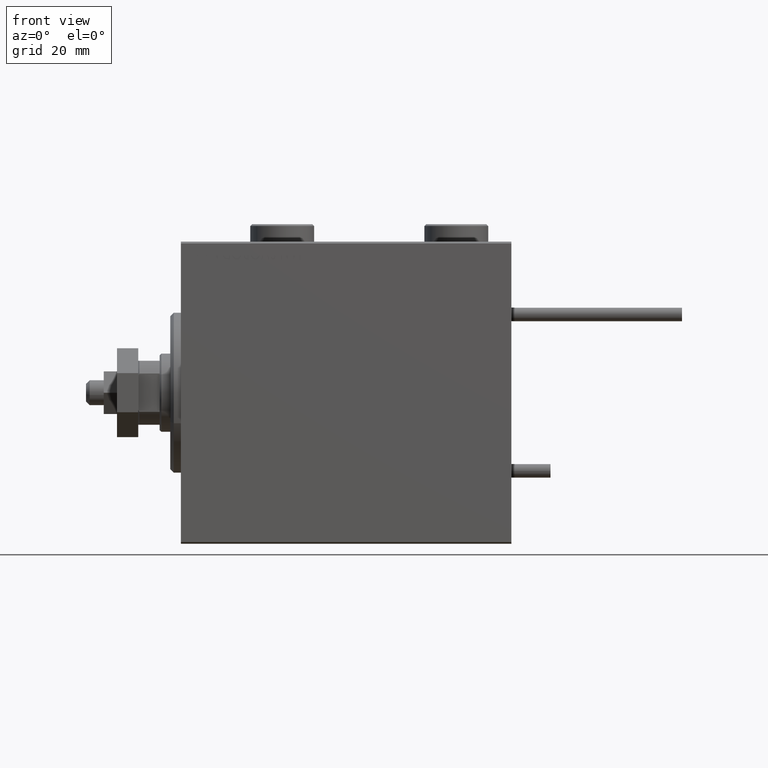
[diagram: clean part render]
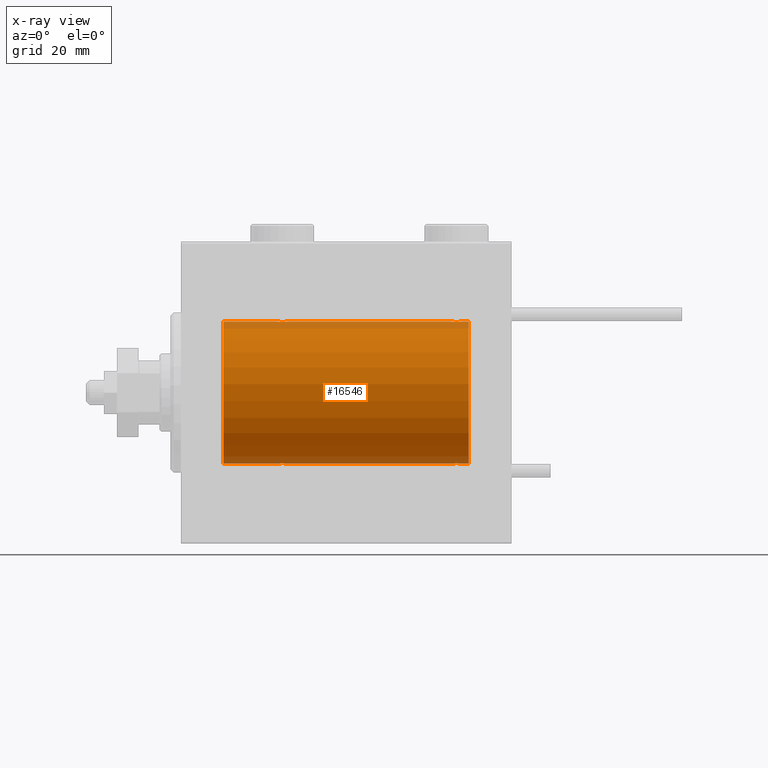
[diagram: x-ray — body ghosted, one internal face saturated and labeled with its STEP entity id]
A machine part, front view, then the same camera in x-ray: the body is ghosted and one INTERNAL B-rep face — a face not visible from any outside direction — is saturated and labeled: STEP entity #16546.
In plain terms, the highlighted cylindrical surface (partial cylindrical patch) has radius 20 mm, axis along (-1, -0, -0).
Its self-contained STEP definition (entity closure, byte-faithful):
#24 = CARTESIAN_POINT ( 'NONE',  ( 75.55244937117493009, -0.5243189001515065062, 19.99457699142850231 ) ) ;
#93 = VECTOR ( 'NONE', #21759, 1000.000000000000000 ) ;
#114 = CARTESIAN_POINT ( 'NONE',  ( 78.82306668919471804, -1.505486175075773758, -19.94347168299867690 ) ) ;
#1064 = CARTESIAN_POINT ( 'NONE',  ( 30.50000000000000000, 2.449293582768389958E-15, -20.00000000000000000 ) ) ;
#1127 = DIRECTION ( 'NONE',  ( -1.000000000000000000, -0.000000000000000000, -0.000000000000000000 ) ) ;
#1616 = CARTESIAN_POINT ( 'NONE',  ( 30.24686976303072328, -1.008108445278688148, 19.97602680192586533 ) ) ;
#2329 = ORIENTED_EDGE ( 'NONE', *, *, #19456, .T. ) ;
#3068 = ORIENTED_EDGE ( 'NONE', *, *, #12763, .T. ) ;
#3178 = CARTESIAN_POINT ( 'NONE',  ( 77.76077256031568652, -1.987205673487813851, 19.90104673894211018 ) ) ;
#3291 = EDGE_CURVE ( 'NONE', #32150, #45580, #17606, .T. ) ;
#3297 = DIRECTION ( 'NONE',  ( -1.000000000000000000, -0.000000000000000000, -0.000000000000000000 ) ) ;
#3449 = CARTESIAN_POINT ( 'NONE',  ( 26.50000000000001421, -0.2610801504281932695, 20.00000000000000000 ) ) ;
#3710 = CARTESIAN_POINT ( 'NONE',  ( 29.38579076670728440, -1.797933656607920261, 19.91908554465558367 ) ) ;
#4017 = CARTESIAN_POINT ( 'NONE',  ( 75.50000000000000000, -0.2644051013331069067, -19.99999999999999289 ) ) ;
#4205 = CARTESIAN_POINT ( 'NONE',  ( 30.24825913460018256, -1.005710574260840096, -19.97614991974273835 ) ) ;
#4216 = CARTESIAN_POINT ( 'NONE',  ( 26.90058475115969827, -1.228758402364238833, 19.96307487248084911 ) ) ;
#4350 = B_SPLINE_CURVE_WITH_KNOTS ( 'NONE', 3,
 ( #15667, #15414, #24, #31804, #50619, #14915, #30793, #47466, #46706, #10991, #19317, #42790, #7078, #22981, #3178, #27386, #51117, #31294, #43300, #7587, #44339, #8881, #9143, #24256, #8623, #24517 ),
 .UNSPECIFIED., .F., .F.,
 ( 4, 2, 2, 2, 2, 2, 2, 2, 2, 2, 2, 2, 4 ),
 ( 0.006256819553329831876, 0.007038738568778781998, 0.007820657584227732120, 0.008211617091952221059, 0.008602576599676711733, 0.008993536107401200672, 0.009384495615125689610, 0.009775455122850180284, 0.01016641463057467096, 0.01055737413829915816, 0.01094833364602364884, 0.01173025266147262671, 0.01251217167692160459 ),
 .UNSPECIFIED. ) ;
#4637 = ORIENTED_EDGE ( 'NONE', *, *, #15284, .F. ) ;
#5515 = CARTESIAN_POINT ( 'NONE',  ( 29.71805419472152110, -1.591668229360197806, 19.93669678979812687 ) ) ;
#6009 = ORIENTED_EDGE ( 'NONE', *, *, #31274, .T. ) ;
#6389 = ORIENTED_EDGE ( 'NONE', *, *, #18362, .F. ) ;
#7078 = CARTESIAN_POINT ( 'NONE',  ( 77.36634803857550935, -1.999898234284064324, 19.89975896996866211 ) ) ;
#7416 = CARTESIAN_POINT ( 'NONE',  ( 76.98351467081099031, -1.936551476643008529, -19.90603968831099024 ) ) ;
#7587 = CARTESIAN_POINT ( 'NONE',  ( 78.71805419472154597, -1.591668229360194697, 19.93669678979812332 ) ) ;
#7611 = CARTESIAN_POINT ( 'NONE',  ( 29.01648532918905232, -1.936551476643010528, 19.90603968831098314 ) ) ;
#7926 = CARTESIAN_POINT ( 'NONE',  ( 76.17903093152709459, -1.507328959728491791, -19.94333197382385592 ) ) ;
#8112 = CARTESIAN_POINT ( 'NONE',  ( 26.55320515808203297, -0.5270924491156746550, -19.99450181871975829 ) ) ;
#8374 = CARTESIAN_POINT ( 'NONE',  ( 29.01923512135277150, -1.935816449315127308, -19.90611141657401362 ) ) ;
#8584 = CARTESIAN_POINT ( 'NONE',  ( 81.00000000000000000, 0.000000000000000000, 0.000000000000000000 ) ) ;
#8623 = CARTESIAN_POINT ( 'NONE',  ( 79.50000000000001421, -0.2644051013330996902, 20.00000000000000000 ) ) ;
#8881 = CARTESIAN_POINT ( 'NONE',  ( 79.09774691554730452, -1.230936344679277372, 19.96293863536309132 ) ) ;
#8896 = B_SPLINE_CURVE_WITH_KNOTS ( 'NONE', 3,
 ( #23766, #3449, #27665, #39677, #4216, #27410, #47233, #40202, #20393, #12561, #20128, #23256, #36018, #36280, #16489, #7611, #39415, #3710, #9672, #5515, #48795, #8909, #1616, #33638, #25055, #21165 ),
 .UNSPECIFIED., .F., .F.,
 ( 4, 2, 2, 2, 2, 2, 2, 2, 2, 2, 2, 2, 4 ),
 ( 0.006256819553329818866, 0.007038738568778795009, 0.007820657584227770284, 0.008211617091952255754, 0.008602576599676739488, 0.008993536107401223223, 0.009384495615125706958, 0.009775455122850190692, 0.01016641463057467443, 0.01055737413829915816, 0.01094833364602364190, 0.01173025266147261110, 0.01251217167692157857 ),
 .UNSPECIFIED. ) ;
#8909 = CARTESIAN_POINT ( 'NONE',  ( 30.09774691554730808, -1.230936344679279593, 19.96293863536309487 ) ) ;
#9143 = CARTESIAN_POINT ( 'NONE',  ( 79.24686976303073038, -1.008108445278686371, 19.97602680192586178 ) ) ;
#9557 = VERTEX_POINT ( 'NONE', #11425 ) ;
#9672 = CARTESIAN_POINT ( 'NONE',  ( 29.50067219139245367, -1.736582545981377734, 19.92459705242981371 ) ) ;
#10073 = CARTESIAN_POINT ( 'NONE',  ( 26.50000000000000355, -6.257798774011376898E-15, -20.00000000000000000 ) ) ;
#10360 = CARTESIAN_POINT ( 'NONE',  ( 79.50000000000001421, 2.449293582762867932E-15, -20.00000000000000000 ) ) ;
#10621 = VERTEX_POINT ( 'NONE', #10360 ) ;
#10991 = CARTESIAN_POINT ( 'NONE',  ( 76.85369326075360163, -1.897222639860601356, 19.90987429971496425 ) ) ;
#11007 = CARTESIAN_POINT ( 'NONE',  ( 30.50000000000000000, -0.2610801504281901053, -20.00000000000000000 ) ) ;
#11256 = CARTESIAN_POINT ( 'NONE',  ( 29.50306556339602082, -1.735203193119896348, -19.92471783160911158 ) ) ;
#11325 = CARTESIAN_POINT ( 'NONE',  ( 75.50000000000001421, -5.133775462521235346E-15, -20.00000000000000000 ) ) ;
#11425 = CARTESIAN_POINT ( 'NONE',  ( 81.00000000000000000, 2.449293598294706513E-15, -20.00000000000000000 ) ) ;
#11585 = CARTESIAN_POINT ( 'NONE',  ( 77.76358144091416591, -1.986835489085815309, -19.90108393514801577 ) ) ;
#11835 = CARTESIAN_POINT ( 'NONE',  ( 77.23922743968434190, -1.987205673487811630, -19.90104673894211018 ) ) ;
#12064 = DIRECTION ( 'NONE',  ( 0.000000000000000000, 0.000000000000000000, 1.000000000000000000 ) ) ;
#12224 = EDGE_CURVE ( 'NONE', #9557, #15544, #32705, .T. ) ;
#12561 = CARTESIAN_POINT ( 'NONE',  ( 27.85369326075355190, -1.897222639860601578, 19.90987429971495715 ) ) ;
#12763 = EDGE_CURVE ( 'NONE', #45580, #43662, #13552, .T. ) ;
#13169 = EDGE_CURVE ( 'NONE', #26379, #43662, #50491, .T. ) ;
#13552 = CIRCLE ( 'NONE', #30204, 20.00000000000000000 ) ;
#13655 = LINE ( 'NONE', #29538, #33950 ) ;
#14504 = CARTESIAN_POINT ( 'NONE',  ( 30.50000000000000000, -9.453669475664189070E-16, 20.00000000000000000 ) ) ;
#14518 = CARTESIAN_POINT ( 'NONE',  ( 81.00000000000000000, 0.000000000000000000, 0.000000000000000000 ) ) ;
#14578 = VERTEX_POINT ( 'NONE', #37602 ) ;
#14783 = CARTESIAN_POINT ( 'NONE',  ( 81.00000000000000000, 0.000000000000000000, 20.00000000000000000 ) ) ;
#14915 = CARTESIAN_POINT ( 'NONE',  ( 76.17693331080531038, -1.505486175075774868, 19.94347168299867690 ) ) ;
#15284 = EDGE_CURVE ( 'NONE', #15544, #44170, #26263, .T. ) ;
#15414 = CARTESIAN_POINT ( 'NONE',  ( 75.50000000000001421, -0.2610801504281921037, 20.00000000000000000 ) ) ;
#15492 = CARTESIAN_POINT ( 'NONE',  ( 75.55320515808202231, -0.5270924491156711023, -19.99450181871975474 ) ) ;
#15544 = VERTEX_POINT ( 'NONE', #49172 ) ;
#15667 = CARTESIAN_POINT ( 'NONE',  ( 75.50000000000001421, -1.553188236289650144E-23, 20.00000000000000000 ) ) ;
#15683 = CARTESIAN_POINT ( 'NONE',  ( 26.50000000000000355, -6.257798774011376898E-15, -20.00000000000000000 ) ) ;
#15696 = EDGE_LOOP ( 'NONE', ( #50905, #6009, #35137, #45788, #2329, #17954, #3068, #32813, #36574, #6389, #42614, #4637 ) ) ;
#15943 = CARTESIAN_POINT ( 'NONE',  ( 29.82306668919470027, -1.505486175075773314, -19.94347168299866979 ) ) ;
#15979 = DIRECTION ( 'NONE',  ( -1.000000000000000000, 0.000000000000000000, 0.000000000000000000 ) ) ;
#16016 = CARTESIAN_POINT ( 'NONE',  ( 77.36941128289169001, -2.000100592782554809, -19.89973863218035888 ) ) ;
#16210 = CARTESIAN_POINT ( 'NONE',  ( 27.28194580527850022, -1.591668229360200026, -19.93669678979812687 ) ) ;
#16489 = CARTESIAN_POINT ( 'NONE',  ( 28.76077256031568652, -1.987205673487814739, 19.90104673894211018 ) ) ;
#16546 = ADVANCED_FACE ( 'NONE', ( #48472 ), #44293, .F. ) ;
#17284 = CARTESIAN_POINT ( 'NONE',  ( 81.00000000000000000, 2.449293598294706513E-15, -20.00000000000000000 ) ) ;
#17606 = LINE ( 'NONE', #33227, #93 ) ;
#17954 = ORIENTED_EDGE ( 'NONE', *, *, #3291, .T. ) ;
#18362 = EDGE_CURVE ( 'NONE', #14578, #29922, #50057, .T. ) ;
#18642 = VECTOR ( 'NONE', #48327, 1000.000000000000000 ) ;
#19317 = CARTESIAN_POINT ( 'NONE',  ( 76.98076487864724982, -1.935816449315128418, 19.90611141657401362 ) ) ;
#19456 = EDGE_CURVE ( 'NONE', #21609, #32150, #28174, .T. ) ;
#19593 = CARTESIAN_POINT ( 'NONE',  ( 30.09941524884030528, -1.228758402364235724, -19.96307487248084911 ) ) ;
#19855 = CARTESIAN_POINT ( 'NONE',  ( 28.36941128289166514, -2.000100592782555697, -19.89973863218036598 ) ) ;
#19928 = CARTESIAN_POINT ( 'NONE',  ( 78.38829437207094486, -1.796691196322316886, -19.91919800395357143 ) ) ;
#20058 = DIRECTION ( 'NONE',  ( 0.000000000000000000, 0.000000000000000000, 1.000000000000000000 ) ) ;
#20108 = EDGE_CURVE ( 'NONE', #26379, #29922, #8896, .T. ) ;
#20115 = CARTESIAN_POINT ( 'NONE',  ( 27.85651471266958978, -1.898187925611340976, -19.90978194174746818 ) ) ;
#20128 = CARTESIAN_POINT ( 'NONE',  ( 27.98076487864723561, -1.935816449315131749, 19.90611141657401362 ) ) ;
#20393 = CARTESIAN_POINT ( 'NONE',  ( 27.61170562792909777, -1.796691196322324213, 19.91919800395357498 ) ) ;
#20762 = CARTESIAN_POINT ( 'NONE',  ( 75.50000000000001421, -5.133775462521235346E-15, -20.00000000000000000 ) ) ;
#21130 = CARTESIAN_POINT ( 'NONE',  ( 26.50000000000000355, -1.552596590610734385E-23, 20.00000000000000000 ) ) ;
#21165 = CARTESIAN_POINT ( 'NONE',  ( 30.50000000000000000, -9.453669475664189070E-16, 20.00000000000000000 ) ) ;
#21609 = VERTEX_POINT ( 'NONE', #1064 ) ;
#21727 = DIRECTION ( 'NONE',  ( -1.000000000000000000, -0.000000000000000000, -0.000000000000000000 ) ) ;
#21759 = DIRECTION ( 'NONE',  ( -1.000000000000000000, -0.000000000000000000, -0.000000000000000000 ) ) ;
#22090 = DIRECTION ( 'NONE',  ( 0.000000000000000000, 0.000000000000000000, 1.000000000000000000 ) ) ;
#22981 = CARTESIAN_POINT ( 'NONE',  ( 77.63058871710833841, -2.000100592782557474, 19.89973863218036243 ) ) ;
#23063 = CARTESIAN_POINT ( 'NONE',  ( 75.75313023696931225, -1.008108445278686816, -19.97602680192586178 ) ) ;
#23256 = CARTESIAN_POINT ( 'NONE',  ( 28.23641855908585541, -1.986835489085820194, 19.90108393514801222 ) ) ;
#23313 = CARTESIAN_POINT ( 'NONE',  ( 79.09941524884031594, -1.228758402364235947, -19.96307487248084556 ) ) ;
#23756 = CARTESIAN_POINT ( 'NONE',  ( 27.49932780860757475, -1.736582545981378845, -19.92459705242981371 ) ) ;
#23766 = CARTESIAN_POINT ( 'NONE',  ( 26.50000000000000355, -1.552596590610734385E-23, 20.00000000000000000 ) ) ;
#23825 = CARTESIAN_POINT ( 'NONE',  ( 76.61420923329272625, -1.797933656607920039, -19.91908554465557657 ) ) ;
#24256 = CARTESIAN_POINT ( 'NONE',  ( 79.44679484191797769, -0.5270924491156685487, 19.99450181871975474 ) ) ;
#24272 = CARTESIAN_POINT ( 'NONE',  ( 28.63365196142447644, -1.999898234284065657, -19.89975896996865856 ) ) ;
#24512 = AXIS2_PLACEMENT_3D ( 'NONE', #8584, #39609, #20058 ) ;
#24517 = CARTESIAN_POINT ( 'NONE',  ( 79.50000000000001421, 1.186436973908835920E-15, 20.00000000000000000 ) ) ;
#25055 = CARTESIAN_POINT ( 'NONE',  ( 30.50000000000000000, -0.2644051013330992461, 19.99999999999999645 ) ) ;
#25543 = CARTESIAN_POINT ( 'NONE',  ( 81.00000000000000000, 0.000000000000000000, 20.00000000000000000 ) ) ;
#26263 = LINE ( 'NONE', #34602, #29454 ) ;
#26379 = VERTEX_POINT ( 'NONE', #21130 ) ;
#26957 = CARTESIAN_POINT ( 'NONE',  ( 78.01923512135279282, -1.935816449315126642, -19.90611141657402072 ) ) ;
#27142 = CARTESIAN_POINT ( 'NONE',  ( 26.90225308445270613, -1.230936344679281369, -19.96293863536309487 ) ) ;
#27208 = CARTESIAN_POINT ( 'NONE',  ( 78.72028945794467347, -1.589957321664207113, -19.93683391378736758 ) ) ;
#27386 = CARTESIAN_POINT ( 'NONE',  ( 78.01648532918905232, -1.936551476643010528, 19.90603968831098669 ) ) ;
#27410 = CARTESIAN_POINT ( 'NONE',  ( 27.17693331080529973, -1.505486175075776645, 19.94347168299866979 ) ) ;
#27665 = CARTESIAN_POINT ( 'NONE',  ( 26.55244937117491943, -0.5243189001515041747, 19.99457699142850231 ) ) ;
#27724 = CARTESIAN_POINT ( 'NONE',  ( 78.14630673924648363, -1.897222639860595139, -19.90987429971497136 ) ) ;
#27914 = CARTESIAN_POINT ( 'NONE',  ( 29.14630673924644100, -1.897222639860597360, -19.90987429971497136 ) ) ;
#27980 = CARTESIAN_POINT ( 'NONE',  ( 79.24825913460020388, -1.005710574260840984, -19.97614991974274901 ) ) ;
#28174 = B_SPLINE_CURVE_WITH_KNOTS ( 'NONE', 3,
 ( #30810, #11007, #34976, #4205, #19593, #15943, #39146, #11256, #43829, #27914, #8374, #35746, #24272, #19855, #51386, #47482, #20115, #31310, #23756, #16210, #47738, #27142, #51132, #8112, #40191, #15683 ),
 .UNSPECIFIED., .F., .F.,
 ( 4, 2, 2, 2, 2, 2, 2, 2, 2, 2, 2, 2, 4 ),
 ( 0.006256819553329837948, 0.007038738568778813223, 0.007820657584227789366, 0.008211617091952273101, 0.008602576599676756836, 0.008993536107401240570, 0.009384495615125724305, 0.009775455122850208040, 0.01016641463057469177, 0.01055737413829917551, 0.01094833364602365924, 0.01173025266147262498, 0.01251217167692159245 ),
 .UNSPECIFIED. ) ;
#28563 = VECTOR ( 'NONE', #3297, 1000.000000000000000 ) ;
#29454 = VECTOR ( 'NONE', #33569, 1000.000000000000000 ) ;
#29538 = CARTESIAN_POINT ( 'NONE',  ( 81.00000000000000000, 2.449293598294706513E-15, -20.00000000000000000 ) ) ;
#29922 = VERTEX_POINT ( 'NONE', #14504 ) ;
#30204 = AXIS2_PLACEMENT_3D ( 'NONE', #35781, #15979, #12064 ) ;
#30716 = CARTESIAN_POINT ( 'NONE',  ( 11.99999999999999645, 2.449293598294706513E-15, -20.00000000000000000 ) ) ;
#30793 = CARTESIAN_POINT ( 'NONE',  ( 76.27971054205535495, -1.589957321664209333, 19.93683391378736403 ) ) ;
#30810 = CARTESIAN_POINT ( 'NONE',  ( 30.50000000000000000, 2.449293582768389958E-15, -20.00000000000000000 ) ) ;
#31274 = EDGE_CURVE ( 'NONE', #9557, #10621, #45679, .T. ) ;
#31294 = CARTESIAN_POINT ( 'NONE',  ( 78.38579076670725954, -1.797933656607921371, 19.91908554465557657 ) ) ;
#31310 = CARTESIAN_POINT ( 'NONE',  ( 27.61420923329272981, -1.797933656607920039, -19.91908554465558367 ) ) ;
#31380 = CARTESIAN_POINT ( 'NONE',  ( 77.63365196142453328, -1.999898234284062104, -19.89975896996866211 ) ) ;
#31513 = VECTOR ( 'NONE', #1127, 1000.000000000000000 ) ;
#31634 = CARTESIAN_POINT ( 'NONE',  ( 79.44755062882509833, -0.5243189001515005110, -19.99457699142850231 ) ) ;
#31804 = CARTESIAN_POINT ( 'NONE',  ( 75.75174086539985296, -1.005710574260844314, 19.97614991974274545 ) ) ;
#31889 = CARTESIAN_POINT ( 'NONE',  ( 79.50000000000001421, 2.449293582762867932E-15, -20.00000000000000000 ) ) ;
#32135 = CARTESIAN_POINT ( 'NONE',  ( 11.99999999999999645, 0.000000000000000000, 20.00000000000000000 ) ) ;
#32150 = VERTEX_POINT ( 'NONE', #10073 ) ;
#32705 = CIRCLE ( 'NONE', #50204, 20.00000000000000000 ) ;
#32813 = ORIENTED_EDGE ( 'NONE', *, *, #13169, .F. ) ;
#33227 = CARTESIAN_POINT ( 'NONE',  ( 81.00000000000000000, 2.449293598294706513E-15, -20.00000000000000000 ) ) ;
#33569 = DIRECTION ( 'NONE',  ( -1.000000000000000000, -0.000000000000000000, -0.000000000000000000 ) ) ;
#33638 = CARTESIAN_POINT ( 'NONE',  ( 30.44679484191798124, -0.5270924491156695479, 19.99450181871975829 ) ) ;
#33950 = VECTOR ( 'NONE', #21727, 1000.000000000000000 ) ;
#33988 = EDGE_CURVE ( 'NONE', #14578, #44170, #4350, .T. ) ;
#34566 = DIRECTION ( 'NONE',  ( -1.000000000000000000, 0.000000000000000000, 0.000000000000000000 ) ) ;
#34602 = CARTESIAN_POINT ( 'NONE',  ( 81.00000000000000000, 0.000000000000000000, 20.00000000000000000 ) ) ;
#34976 = CARTESIAN_POINT ( 'NONE',  ( 30.44755062882508412, -0.5243189001515006220, -19.99457699142850231 ) ) ;
#35045 = CARTESIAN_POINT ( 'NONE',  ( 78.50306556339604924, -1.735203193119893461, -19.92471783160911514 ) ) ;
#35137 = ORIENTED_EDGE ( 'NONE', *, *, #49725, .T. ) ;
#35746 = CARTESIAN_POINT ( 'NONE',  ( 28.76358144091414815, -1.986835489085816198, -19.90108393514801222 ) ) ;
#35781 = CARTESIAN_POINT ( 'NONE',  ( 11.99999999999999645, 0.000000000000000000, 0.000000000000000000 ) ) ;
#36018 = CARTESIAN_POINT ( 'NONE',  ( 28.36634803857551290, -1.999898234284068321, 19.89975896996865856 ) ) ;
#36280 = CARTESIAN_POINT ( 'NONE',  ( 28.63058871710834552, -2.000100592782559250, 19.89973863218036598 ) ) ;
#36574 = ORIENTED_EDGE ( 'NONE', *, *, #20108, .T. ) ;
#37602 = CARTESIAN_POINT ( 'NONE',  ( 75.50000000000001421, -1.553188236289650144E-23, 20.00000000000000000 ) ) ;
#39146 = CARTESIAN_POINT ( 'NONE',  ( 29.72028945794465216, -1.589957321664210665, -19.93683391378736047 ) ) ;
#39215 = CARTESIAN_POINT ( 'NONE',  ( 76.28194580527848245, -1.591668229360193143, -19.93669678979812332 ) ) ;
#39415 = CARTESIAN_POINT ( 'NONE',  ( 29.14348528733042443, -1.898187925611342974, 19.90978194174746818 ) ) ;
#39609 = DIRECTION ( 'NONE',  ( -1.000000000000000000, -0.000000000000000000, -0.000000000000000000 ) ) ;
#39677 = CARTESIAN_POINT ( 'NONE',  ( 26.75174086539980678, -1.005710574260844092, 19.97614991974273835 ) ) ;
#39740 = CARTESIAN_POINT ( 'NONE',  ( 75.90225308445273811, -1.230936344679278038, -19.96293863536309487 ) ) ;
#40191 = CARTESIAN_POINT ( 'NONE',  ( 26.50000000000000711, -0.2644051013331055744, -19.99999999999999645 ) ) ;
#40202 = CARTESIAN_POINT ( 'NONE',  ( 27.49693443660398273, -1.735203193119900344, 19.92471783160911158 ) ) ;
#42614 = ORIENTED_EDGE ( 'NONE', *, *, #33988, .T. ) ;
#42790 = CARTESIAN_POINT ( 'NONE',  ( 77.23641855908586251, -1.986835489085817086, 19.90108393514801932 ) ) ;
#43129 = CARTESIAN_POINT ( 'NONE',  ( 79.50000000000002842, -0.2610801504281906049, -19.99999999999999645 ) ) ;
#43300 = CARTESIAN_POINT ( 'NONE',  ( 78.50067219139245367, -1.736582545981373515, 19.92459705242980306 ) ) ;
#43377 = CARTESIAN_POINT ( 'NONE',  ( 76.85651471266960755, -1.898187925611341198, -19.90978194174746818 ) ) ;
#43397 = VERTEX_POINT ( 'NONE', #20762 ) ;
#43662 = VERTEX_POINT ( 'NONE', #32135 ) ;
#43829 = CARTESIAN_POINT ( 'NONE',  ( 29.38829437207092354, -1.796691196322319994, -19.91919800395357498 ) ) ;
#43897 = CARTESIAN_POINT ( 'NONE',  ( 76.49932780860757475, -1.736582545981372405, -19.92459705242980661 ) ) ;
#44170 = VERTEX_POINT ( 'NONE', #44889 ) ;
#44293 = CYLINDRICAL_SURFACE ( 'NONE', #24512, 20.00000000000000000 ) ;
#44339 = CARTESIAN_POINT ( 'NONE',  ( 78.82096906847290541, -1.507328959728492235, 19.94333197382385592 ) ) ;
#44889 = CARTESIAN_POINT ( 'NONE',  ( 79.50000000000001421, 1.186436973908835920E-15, 20.00000000000000000 ) ) ;
#45580 = VERTEX_POINT ( 'NONE', #30716 ) ;
#45679 = LINE ( 'NONE', #17284, #31513 ) ;
#45788 = ORIENTED_EDGE ( 'NONE', *, *, #49917, .T. ) ;
#46681 = B_SPLINE_CURVE_WITH_KNOTS ( 'NONE', 3,
 ( #31889, #43129, #31634, #27980, #23313, #114, #27208, #35045, #19928, #27724, #26957, #11585, #31380, #16016, #11835, #7416, #43377, #23825, #43897, #39215, #7926, #39740, #23063, #15492, #4017, #11325 ),
 .UNSPECIFIED., .F., .F.,
 ( 4, 2, 2, 2, 2, 2, 2, 2, 2, 2, 2, 2, 4 ),
 ( 0.006256819553329831876, 0.007038738568778780264, 0.007820657584227728651, 0.008211617091952217590, 0.008602576599676706529, 0.008993536107401195467, 0.009384495615125684406, 0.009775455122850173345, 0.01016641463057466055, 0.01055737413829914775, 0.01094833364602363843, 0.01173025266147261284, 0.01251217167692158898 ),
 .UNSPECIFIED. ) ;
#46706 = CARTESIAN_POINT ( 'NONE',  ( 76.61170562792909777, -1.796691196322324879, 19.91919800395357143 ) ) ;
#47233 = CARTESIAN_POINT ( 'NONE',  ( 27.27971054205535495, -1.589957321664213552, 19.93683391378736047 ) ) ;
#47466 = CARTESIAN_POINT ( 'NONE',  ( 76.49693443660400760, -1.735203193119895460, 19.92471783160911514 ) ) ;
#47482 = CARTESIAN_POINT ( 'NONE',  ( 27.98351467081095123, -1.936551476643008529, -19.90603968831098314 ) ) ;
#47738 = CARTESIAN_POINT ( 'NONE',  ( 27.17903093152711591, -1.507328959728495787, -19.94333197382386302 ) ) ;
#48327 = DIRECTION ( 'NONE',  ( -1.000000000000000000, -0.000000000000000000, -0.000000000000000000 ) ) ;
#48472 = FACE_OUTER_BOUND ( 'NONE', #15696, .T. ) ;
#48795 = CARTESIAN_POINT ( 'NONE',  ( 29.82096906847290896, -1.507328959728495121, 19.94333197382386302 ) ) ;
#49172 = CARTESIAN_POINT ( 'NONE',  ( 81.00000000000000000, 0.000000000000000000, 20.00000000000000000 ) ) ;
#49725 = EDGE_CURVE ( 'NONE', #10621, #43397, #46681, .T. ) ;
#49917 = EDGE_CURVE ( 'NONE', #43397, #21609, #13655, .T. ) ;
#50057 = LINE ( 'NONE', #25543, #18642 ) ;
#50204 = AXIS2_PLACEMENT_3D ( 'NONE', #14518, #34566, #22090 ) ;
#50491 = LINE ( 'NONE', #14783, #28563 ) ;
#50619 = CARTESIAN_POINT ( 'NONE',  ( 75.90058475115972669, -1.228758402364237945, 19.96307487248085266 ) ) ;
#50905 = ORIENTED_EDGE ( 'NONE', *, *, #12224, .F. ) ;
#51117 = CARTESIAN_POINT ( 'NONE',  ( 78.14348528733042087, -1.898187925611342974, 19.90978194174746818 ) ) ;
#51132 = CARTESIAN_POINT ( 'NONE',  ( 26.75313023696928738, -1.008108445278691478, -19.97602680192586533 ) ) ;
#51386 = CARTESIAN_POINT ( 'NONE',  ( 28.23922743968432414, -1.987205673487811630, -19.90104673894211018 ) ) ;